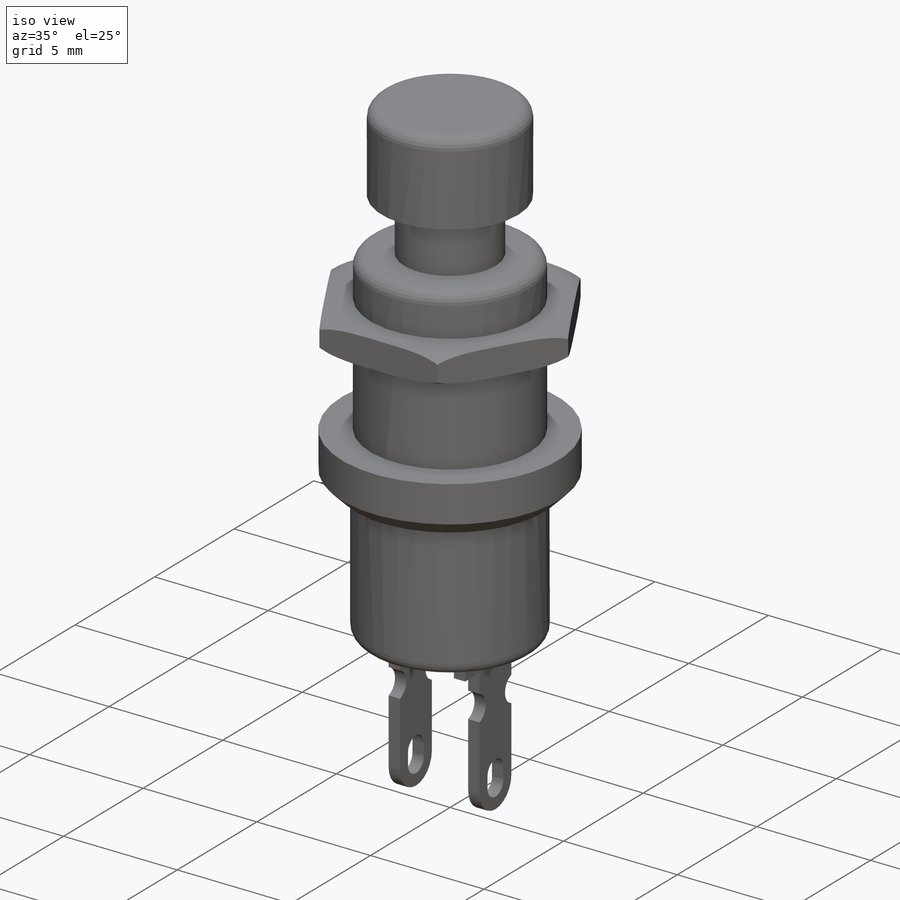
[diagram: iso view]
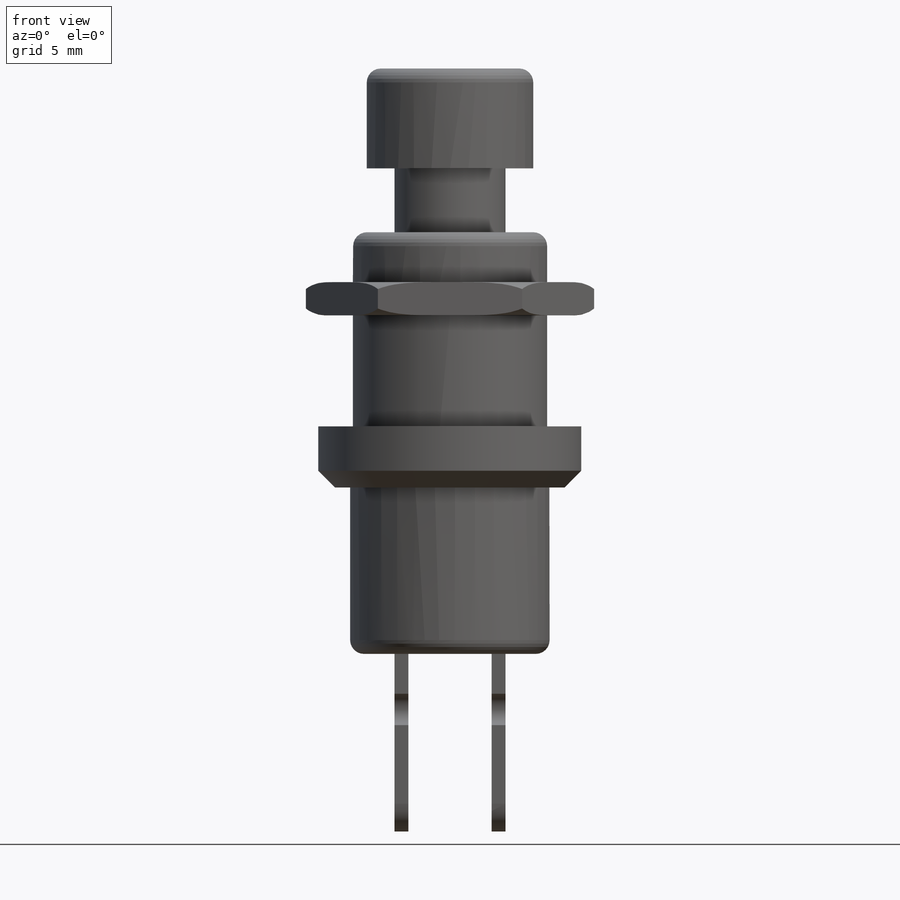
[diagram: front view]
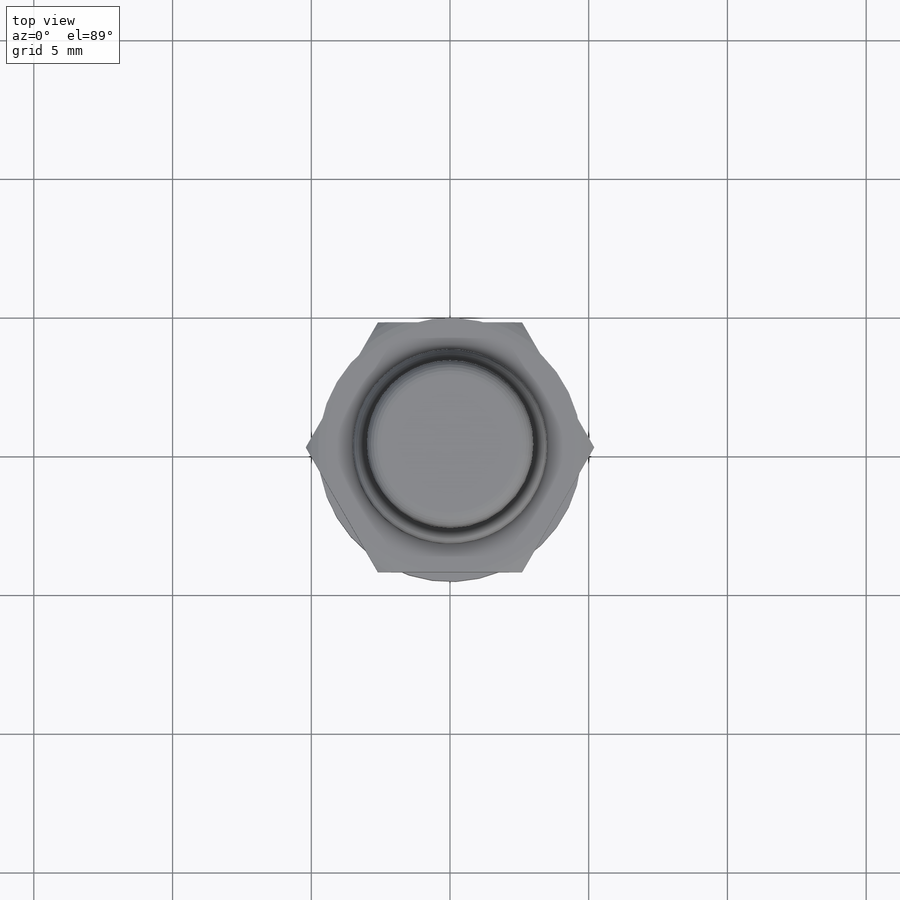
[diagram: top view]
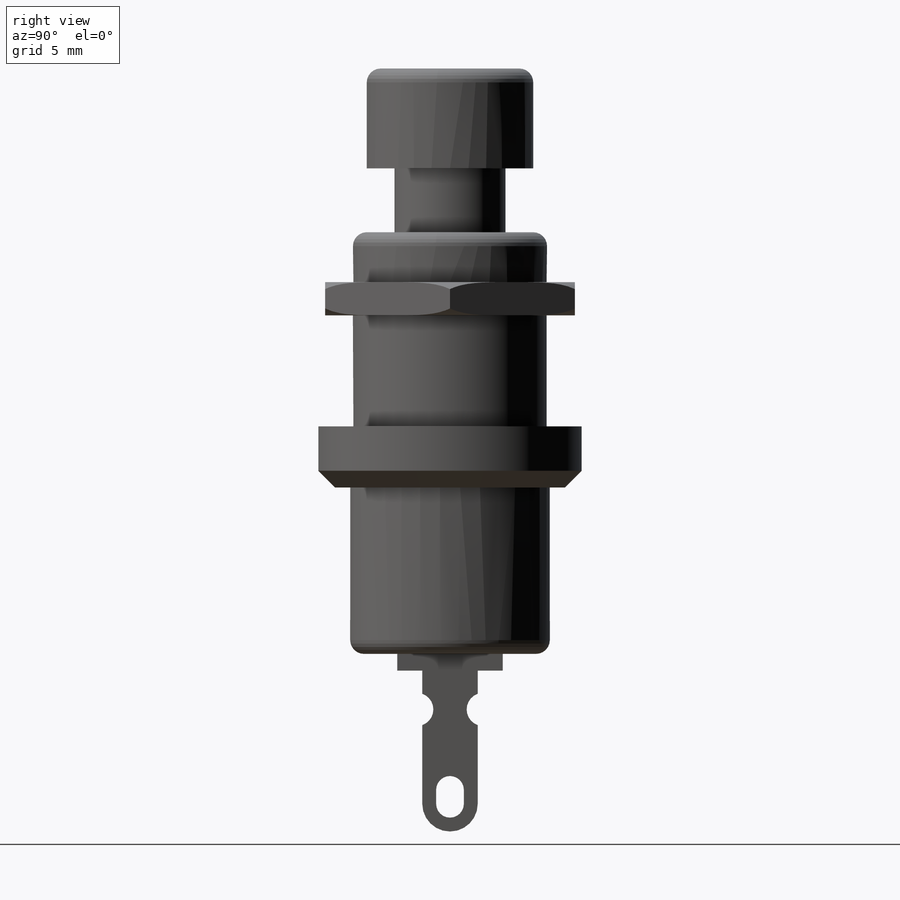
[diagram: right view]
SOLIDWORKS PART (.sldprt)
format: sldprt  version: not decoded by parser v0  size: 343,552 bytes
history: native  units: mm
features: sketch x5, extrude x2, material x1, revolve x1, fillet x1, cut_extrude x1, mirror x1, cut_revolve x1 (+11 scaffold rows collapsed)
feature tree (24):
  scaffold x11  (default folders/planes/origin — collapsed)
  material  "Material <not specified>"
  sketch  "Sketch1"  dims[c1.D1=3.0mm c1.D2=3.6mm c1.D3=2.3mm c1.D4=3.5mm c1.D5=7.0mm c1.D6=8.2mm c1.D7=3.6mm c1.D8=4.75mm c1.D9=~0.551776mm c2.D9=135.0deg c2.D10=1.6mm c2.D11=0.6mm c2.D12=2.0mm]
  revolve  "Revolve1"  Angle=360deg
  fillet  "Fillet1"  Radius=0.5mm
  sketch  "Sketch2"  dims[D1=~3.512652mm D2=5.4mm D3=0.6mm D4=3.8mm]
  extrude  "Boss-Extrude1"  Depth=0.5mm
  sketch  "Sketch3"  dims[c1.D1=0.5mm c1.D3=1.2mm c2.D1=~0.077547mm c2.D2=0.5mm c2.D4=0.2mm c2.D5=0.2mm c2.D6=2.0mm]
  cut_extrude  "Cut-Extrude1"  [1 undecoded]
  mirror  "Mirror1"
  sketch  "Sketch4"  dims[D1=9.0mm]
  extrude  "Boss-Extrude2"  Depth=1.2mm
  sketch  "Sketch5"  dims[D1=0.25mm D2=4.5mm]
  cut_revolve  "Cut-Revolve1"  Angle=360deg
decode coverage: 10 of 12 modeling features carry decoded parameters
note: ~ marks probable driven/reference dimensions
note: 1 parameter value undecoded
note: suppression state not decoded; provenance and decode notes live in map.json
